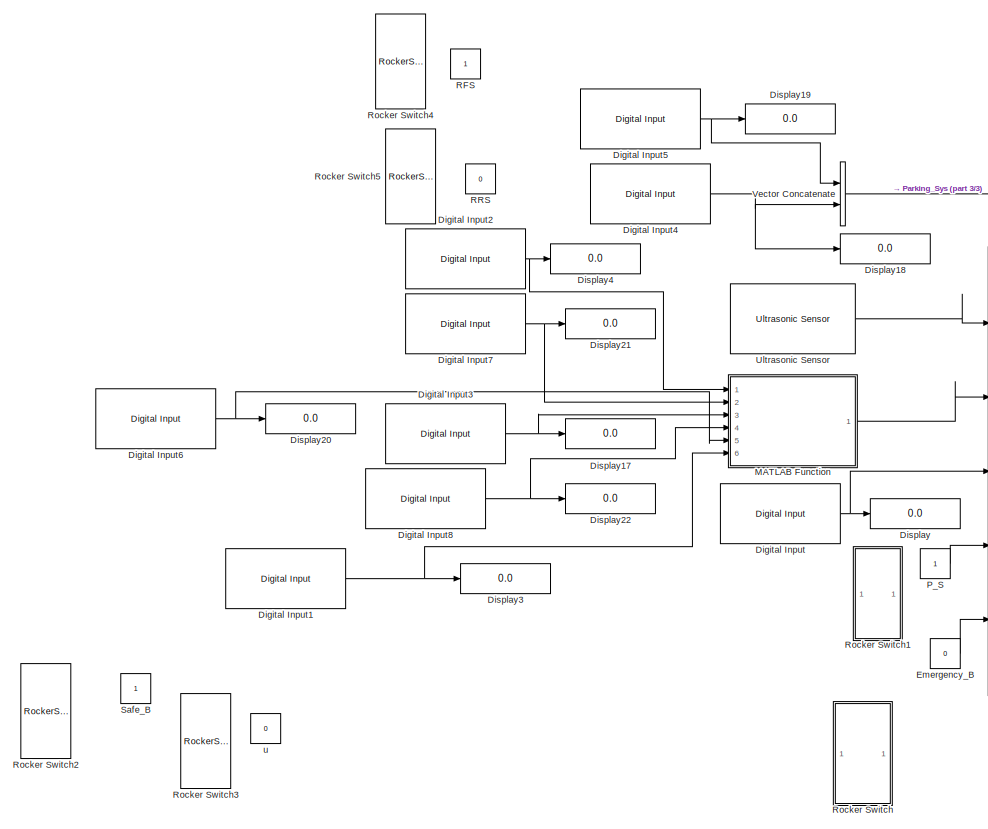
[diagram: root canvas - part 1/3, left side, full height]
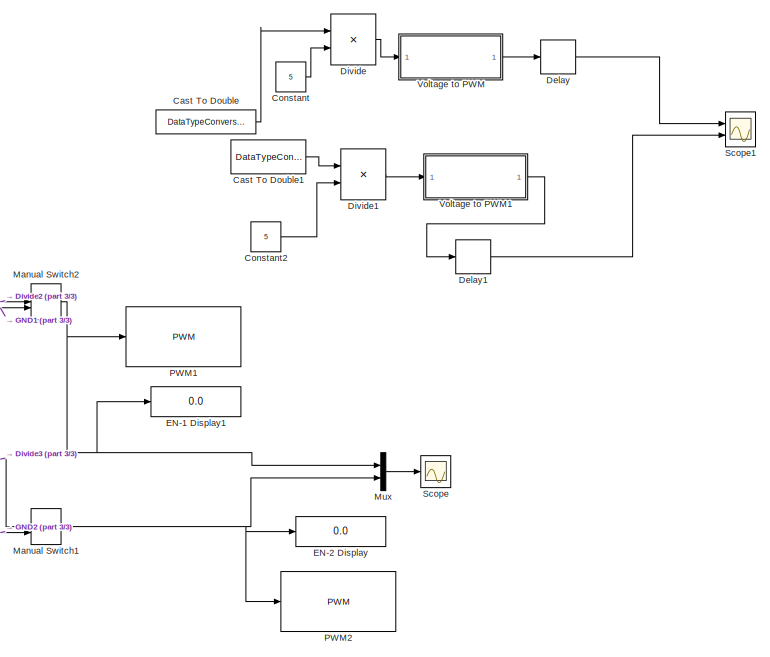
[diagram: root canvas - part 2/3, right side, full height]
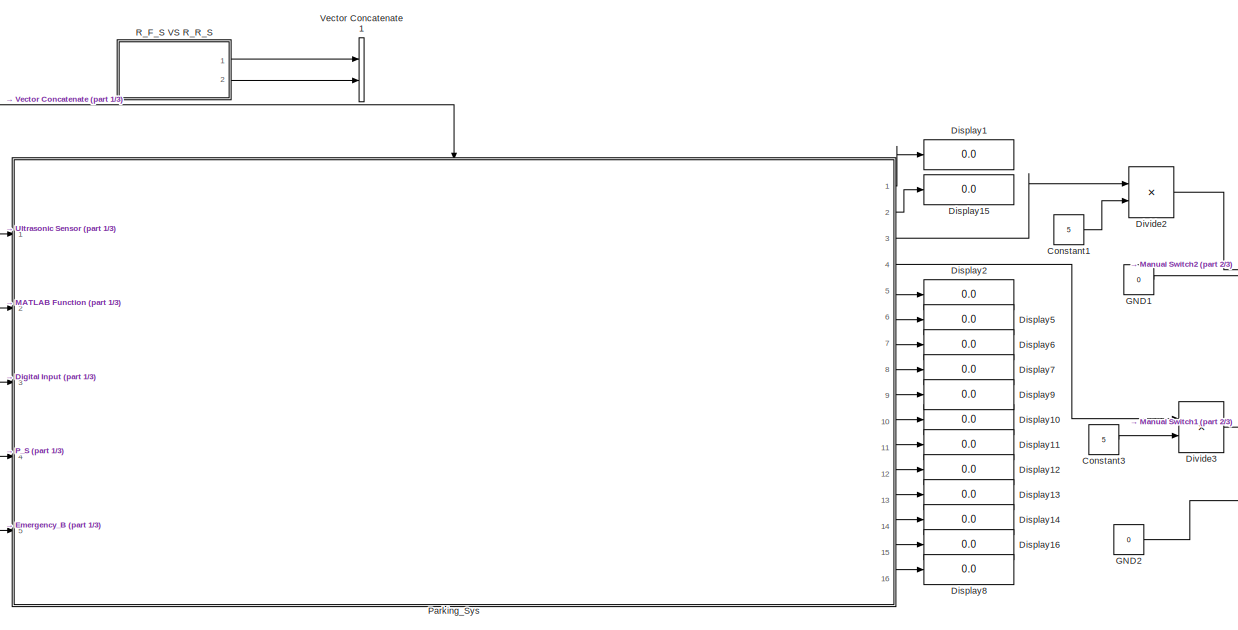
[diagram: root canvas - part 3/3, center side, full height]
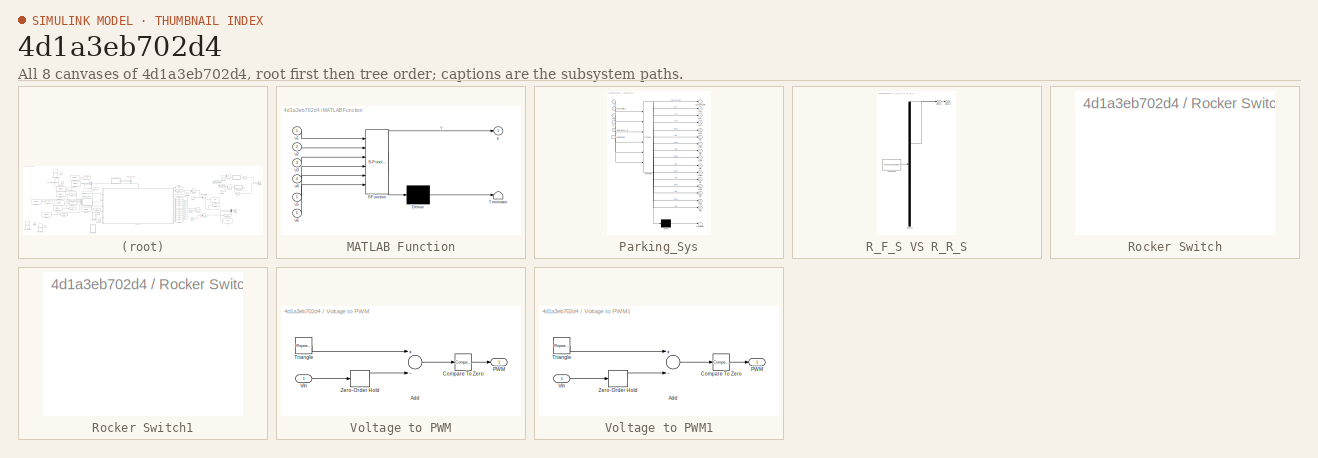
[diagram: thumbnail index - all 8 canvases of the model, root first then tree order]
MODEL slx_4d1a3eb702d4
KIND model
CONFIG AbsTol = auto
CONFIG FixedStep = 0.01
CONFIG MaxStep = auto
CONFIG MinStep = auto
CONFIG RelTol = 1e-3
CONFIG SampleTimeConstraint = Unconstrained
CONFIG Solver = FixedStepAuto
CONFIG SolverMode = Auto
CONFIG SolverName = FixedStepAuto
CONFIG StartTime = 0.0
CONFIG StopTime = inf
BLOCK [Reference]  PWM1  REF=arduinolib/PWM
  Ports = [1]
  SourceBlock = arduinolib/PWM
  SourceType = Arduino PWM
BLOCK [Reference]  PWM2  REF=arduinolib/PWM
  Ports = [1]
  SourceBlock = arduinolib/PWM
  SourceType = Arduino PWM
BLOCK [DataTypeConversion] Cast To Double
  Commented = on
  OutDataTypeStr = double
  RndMeth = Floor
  SaturateOnIntegerOverflow = off
BLOCK [DataTypeConversion] Cast To Double1
  Commented = on
  OutDataTypeStr = double
  RndMeth = Floor
  SaturateOnIntegerOverflow = off
BLOCK [Constant] Constant
  Commented = on
  Value = 5
BLOCK [Constant] Constant1
  Value = 5
BLOCK [Constant] Constant2
  Commented = on
  Value = 5
BLOCK [Constant] Constant3
  Value = 5
BLOCK [Delay] Delay
  Commented = on
  DelayLength = 10
  InputPortMap = u0
  Ports = [1, 1]
BLOCK [Delay] Delay1
  Commented = on
  DelayLength = 10
  InputPortMap = u0
  Ports = [1, 1]
BLOCK [Reference] Digital Input  REF=arduinolib/Digital Input
  Ports = [0, 1]
  SourceBlock = arduinolib/Digital Input
  SourceType = Arduino Digital Input
BLOCK [Reference] Digital Input1  REF=arduinolib/Digital Input
  Ports = [0, 1]
  SourceBlock = arduinolib/Digital Input
  SourceType = Arduino Digital Input
BLOCK [Reference] Digital Input2  REF=arduinolib/Digital Input
  Ports = [0, 1]
  SourceBlock = arduinolib/Digital Input
  SourceType = Arduino Digital Input
BLOCK [Reference] Digital Input3  REF=arduinolib/Digital Input
  Ports = [0, 1]
  SourceBlock = arduinolib/Digital Input
  SourceType = Arduino Digital Input
BLOCK [Reference] Digital Input4  REF=arduinolib/Digital Input
  Ports = [0, 1]
  SourceBlock = arduinolib/Digital Input
  SourceType = Arduino Digital Input
BLOCK [Reference] Digital Input5  REF=arduinolib/Digital Input
  Ports = [0, 1]
  SourceBlock = arduinolib/Digital Input
  SourceType = Arduino Digital Input
BLOCK [Reference] Digital Input6  REF=arduinolib/Digital Input
  Ports = [0, 1]
  SourceBlock = arduinolib/Digital Input
  SourceType = Arduino Digital Input
BLOCK [Reference] Digital Input7  REF=arduinolib/Digital Input
  Ports = [0, 1]
  SourceBlock = arduinolib/Digital Input
  SourceType = Arduino Digital Input
BLOCK [Reference] Digital Input8  REF=arduinolib/Digital Input
  Ports = [0, 1]
  SourceBlock = arduinolib/Digital Input
  SourceType = Arduino Digital Input
BLOCK [Display] Display
  Decimation = 1
  Ports = [1]
BLOCK [Display] Display1
  Decimation = 1
  Ports = [1]
BLOCK [Display] Display10
  Decimation = 1
  Ports = [1]
BLOCK [Display] Display11
  Decimation = 1
  Ports = [1]
BLOCK [Display] Display12
  Decimation = 1
  Ports = [1]
BLOCK [Display] Display13
  Decimation = 1
  Ports = [1]
BLOCK [Display] Display14
  Decimation = 1
  Ports = [1]
BLOCK [Display] Display15
  Decimation = 1
  Ports = [1]
BLOCK [Display] Display16
  Decimation = 1
  Ports = [1]
BLOCK [Display] Display17
  Decimation = 1
  Ports = [1]
BLOCK [Display] Display18
  Decimation = 1
  Ports = [1]
BLOCK [Display] Display19
  Decimation = 1
  Ports = [1]
BLOCK [Display] Display2
  Decimation = 1
  Ports = [1]
BLOCK [Display] Display20
  Decimation = 1
  Ports = [1]
BLOCK [Display] Display21
  Decimation = 1
  Ports = [1]
BLOCK [Display] Display22
  Decimation = 1
  Ports = [1]
BLOCK [Display] Display3
  Decimation = 1
  Ports = [1]
BLOCK [Display] Display4
  Decimation = 1
  Ports = [1]
BLOCK [Display] Display5
  Decimation = 1
  Ports = [1]
BLOCK [Display] Display6
  Decimation = 1
  Ports = [1]
BLOCK [Display] Display7
  Decimation = 1
  Ports = [1]
BLOCK [Display] Display8
  Decimation = 1
  Ports = [1]
BLOCK [Display] Display9
  Decimation = 1
  Ports = [1]
BLOCK [Product] Divide
  Commented = on
  InputSameDT = off
  Inputs = */
  OutDataTypeStr = Inherit: Inherit via internal rule
  Ports = [2, 1]
  RndMeth = Floor
  SaturateOnIntegerOverflow = off
BLOCK [Product] Divide1
  Commented = on
  InputSameDT = off
  Inputs = */
  OutDataTypeStr = Inherit: Inherit via internal rule
  Ports = [2, 1]
  RndMeth = Floor
  SaturateOnIntegerOverflow = off
BLOCK [Product] Divide2
  InputSameDT = off
  Inputs = */
  OutDataTypeStr = Inherit: Inherit via internal rule
  Ports = [2, 1]
  RndMeth = Floor
  SaturateOnIntegerOverflow = off
BLOCK [Product] Divide3
  InputSameDT = off
  Inputs = */
  OutDataTypeStr = Inherit: Inherit via internal rule
  Ports = [2, 1]
  RndMeth = Floor
  SaturateOnIntegerOverflow = off
BLOCK [Display] EN-1 Display1
  Decimation = 1
  Ports = [1]
BLOCK [Display] EN-2 Display
  Decimation = 1
  Ports = [1]
BLOCK [Constant] Emergency_B
  Value = 0
BLOCK [Constant] GND1
  Value = 0
BLOCK [Constant] GND2
  Value = 0
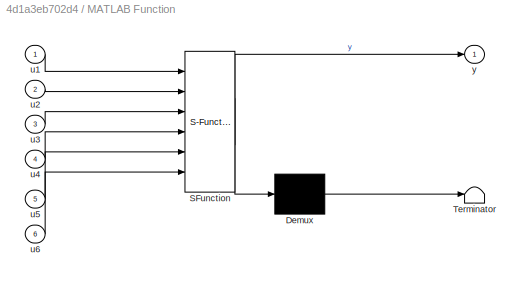
BLOCK [SubSystem] MATLAB Function
  ErrorFcn = Stateflow.Translate.translate
  PermitHierarchicalResolution = ExplicitOnly
  Ports = [6, 1]
  RequestExecContextInheritance = off
  SFBlockType = MATLAB Function
  TreatAsAtomicUnit = on
BLOCK [Demux] MATLAB Function/ Demux 
  Outputs = 1
  Ports = [1, 1]
BLOCK [S-Function] MATLAB Function/ SFunction 
  EnableBusSupport = on
  FunctionName = sf_sfun
  PortCounts = [6 2]
  Ports = [6, 2]
  SFunctionDeploymentMode = off
  Tag = Stateflow S-Function state_chart_final 2
BLOCK [Terminator] MATLAB Function/ Terminator 
BLOCK [Inport] MATLAB Function/u1
  IconDisplay = Port number
BLOCK [Inport] MATLAB Function/u2
  IconDisplay = Port number
  Port = 2
BLOCK [Inport] MATLAB Function/u3
  IconDisplay = Port number
  Port = 3
BLOCK [Inport] MATLAB Function/u4
  IconDisplay = Port number
  Port = 4
BLOCK [Inport] MATLAB Function/u5
  IconDisplay = Port number
  Port = 5
BLOCK [Inport] MATLAB Function/u6
  IconDisplay = Port number
  Port = 6
BLOCK [Outport] MATLAB Function/y
  IconDisplay = Port number
BLOCK [ManualSwitch] Manual Switch1
  CurrentSetting = 0
BLOCK [ManualSwitch] Manual Switch2
  CurrentSetting = 0
BLOCK [Mux] Mux
  DisplayOption = bar
  Inputs = 2
  Ports = [2, 1]
BLOCK [Constant] P_S
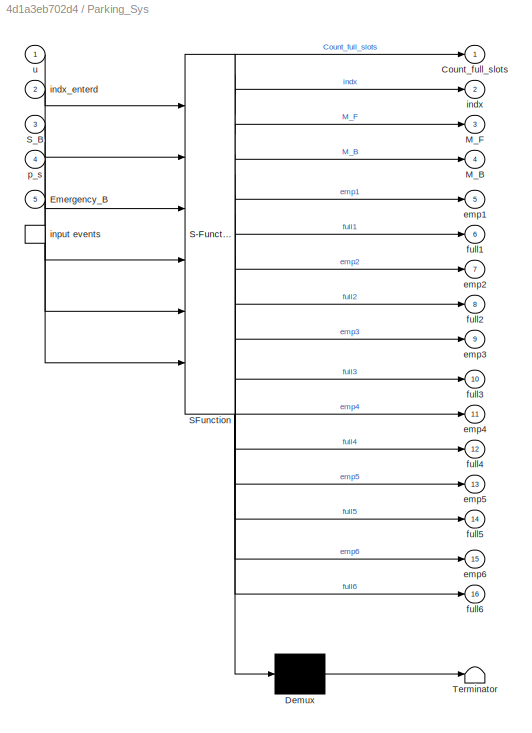
BLOCK [SubSystem] Parking_Sys
  ErrorFcn = Stateflow.Translate.translate
  PermitHierarchicalResolution = ExplicitOnly
  Ports = [5, 16, 0, 1]
  RequestExecContextInheritance = off
  SFBlockType = Chart
  TreatAsAtomicUnit = on
BLOCK [Demux] Parking_Sys/ Demux 
  Outputs = 1
  Ports = [1, 1]
BLOCK [S-Function] Parking_Sys/ SFunction 
  EnableBusSupport = on
  FunctionName = sf_sfun
  PortCounts = [6 17]
  Ports = [6, 17]
  SFunctionDeploymentMode = off
  Tag = Stateflow S-Function state_chart_final 3
BLOCK [Terminator] Parking_Sys/ Terminator 
BLOCK [Outport] Parking_Sys/Count_full_slots
  IconDisplay = Port number
BLOCK [Inport] Parking_Sys/Emergency_B
  IconDisplay = Port number
  Port = 5
BLOCK [Outport] Parking_Sys/M_B
  IconDisplay = Port number
  Port = 4
BLOCK [Outport] Parking_Sys/M_F
  IconDisplay = Port number
  Port = 3
BLOCK [Inport] Parking_Sys/S_B
  IconDisplay = Port number
  Port = 3
BLOCK [Outport] Parking_Sys/emp1
  IconDisplay = Port number
  Port = 5
BLOCK [Outport] Parking_Sys/emp2
  IconDisplay = Port number
  Port = 7
BLOCK [Outport] Parking_Sys/emp3
  IconDisplay = Port number
  Port = 9
BLOCK [Outport] Parking_Sys/emp4
  IconDisplay = Port number
  Port = 11
BLOCK [Outport] Parking_Sys/emp5
  IconDisplay = Port number
  Port = 13
BLOCK [Outport] Parking_Sys/emp6
  IconDisplay = Port number
  Port = 15
BLOCK [Outport] Parking_Sys/full1
  IconDisplay = Port number
  Port = 6
BLOCK [Outport] Parking_Sys/full2
  IconDisplay = Port number
  Port = 8
BLOCK [Outport] Parking_Sys/full3
  IconDisplay = Port number
  Port = 10
BLOCK [Outport] Parking_Sys/full4
  IconDisplay = Port number
  Port = 12
BLOCK [Outport] Parking_Sys/full5
  IconDisplay = Port number
  Port = 14
BLOCK [Outport] Parking_Sys/full6
  IconDisplay = Port number
  Port = 16
BLOCK [Outport] Parking_Sys/indx
  IconDisplay = Port number
  Port = 2
BLOCK [Inport] Parking_Sys/indx_enterd
  IconDisplay = Port number
  Port = 2
BLOCK [TriggerPort] Parking_Sys/input events
  Ports = [0, 1]
  ShowOutputPort = on
  StatesWhenEnabling = held
  VariantControl = (inherit)
BLOCK [Inport] Parking_Sys/p_s
  IconDisplay = Port number
  Port = 4
BLOCK [Inport] Parking_Sys/u
  IconDisplay = Port number
BLOCK [Constant] RFS
  Commented = on
BLOCK [Constant] RRS
  Commented = on
  Value = 0
BLOCK [SubSystem] R_F_S VS R_R_S
  ClipboardFcn = sigbuilder_block('clipboard');
  CloseFcn = sigbuilder_block('close');
  Commented = on
  ContinueFcn = sigbuilder_block('continue');
  CopyFcn = sigbuilder_block('copy');
  DeleteFcn = sigbuilder_block('delete');
  LoadFcn = sigbuilder_block('load');
  MaskHideContents = on
  ModelCloseFcn = sigbuilder_block('modelClose');
  NameChangeFcn = sigbuilder_block('namechange');
  OpenFcn = sigbuilder_block('open',[6 30 1012.5 447.75 ]);
  PauseFcn = sigbuilder_block('pause');
  Ports = [0, 2]
  PreSaveFcn = sigbuilder_block('preSave');
  RequestExecContextInheritance = off
  StartFcn = sigbuilder_block('start');
  StopFcn = sigbuilder_block('stop');
  Tag = STV Subsys
BLOCK [Demux] R_F_S VS R_R_S/Demux
  Outputs = 2
  Ports = [1, 2]
  Tag = STV Demux
BLOCK [FromWorkspace] R_F_S VS R_R_S/FromWs
  SampleTime = 0
  Tag = STV FromWs
  VariableName = tuvar
  ZeroCross = on
BLOCK [Outport] R_F_S VS R_R_S/Signal 1
  IconDisplay = Port number
  Tag = STV Outport
BLOCK [Outport] R_F_S VS R_R_S/Signal 2
  IconDisplay = Port number
  Port = 2
  Tag = STV Outport
BLOCK [SubSystem] Rocker Switch
  DialogController = hmiCreateDDGDialog
  IsWebBlock = on
  Ports = []
  RequestExecContextInheritance = off
BLOCK [SubSystem] Rocker Switch1
  DialogController = hmiCreateDDGDialog
  IsWebBlock = on
  Ports = []
  RequestExecContextInheritance = off
BLOCK [RockerSwitchBlock] Rocker Switch2
  Commented = on
BLOCK [RockerSwitchBlock] Rocker Switch3
  Commented = on
BLOCK [RockerSwitchBlock] Rocker Switch4
  Commented = on
BLOCK [RockerSwitchBlock] Rocker Switch5
  Commented = on
BLOCK [Constant] Safe_B
  Commented = on
BLOCK [Scope] Scope
  Floating = off
  NumInputPorts = 1
  Ports = [1]
  ScopeSpecificationString = Simulink.scopes.TimeScopeBlockCfg('CurrentConfiguration', extmgr.ConfigurationSet(extmgr.Configuration('Core','General UI',true),extmgr.Configuration('Core','Source UI',true),extmgr.Configuration('Sources','WiredSimulink',true,'DataLoggingVariableName','ScopeData2'),extmgr.Configuration('Visuals','Time Domain',true,'SerializedDisplays',{struct('MinYLimReal','-0.025','MaxYLimReal','0.225','YLabelRe...<+1570ch>
BLOCK [Scope] Scope1
  Commented = on
  Floating = off
  NumInputPorts = 2
  Ports = [2]
  ScopeSpecificationString = Simulink.scopes.TimeScopeBlockCfg('CurrentConfiguration', extmgr.ConfigurationSet(extmgr.Configuration('Core','General UI',true),extmgr.Configuration('Core','Source UI',true),extmgr.Configuration('Sources','WiredSimulink',true,'DataLoggingVariableName','ScopeData1'),extmgr.Configuration('Visuals','Time Domain',true,'SerializedDisplays',{struct('MinYLimReal','-0.125','MaxYLimReal','1.125','YLabelRe...<+2061ch>
BLOCK [Reference] Ultrasonic Sensor  REF=arduinosensorlib/Ultrasonic Sensor
  Ports = [0, 1]
  SourceBlock = arduinosensorlib/Ultrasonic Sensor
  SourceType = Arduino Ultrasonic Sensor
BLOCK [Concatenate] Vector Concatenate
  Ports = [2, 1]
BLOCK [Concatenate] Vector Concatenate1
  Commented = on
  Ports = [2, 1]
BLOCK [SubSystem] Voltage to PWM
  Commented = on
  Ports = [1, 1]
  RequestExecContextInheritance = off
BLOCK [Sum] Voltage to PWM/Add
  InputSameDT = off
  Inputs = +-
  OutDataTypeStr = Inherit: Inherit via internal rule
  Ports = [2, 1]
  SampleTime = 1/10000
  SaturateOnIntegerOverflow = off
BLOCK [Reference] Voltage to PWM/Compare To Zero  REF=simulink/Logic and Bit
Operations/Compare
To Zero
  Ports = [1, 1]
  SourceBlock = simulink/Logic and Bit\nOperations/Compare\nTo Zero
  SourceType = Compare To Zero
BLOCK [Outport] Voltage to PWM/PWM
  IconDisplay = Port number
BLOCK [Reference] Voltage to PWM/Triangle  REF=simulink/Sources/Repeating
Sequence
  Ports = [0, 1]
  SourceBlock = simulink/Sources/Repeating\nSequence
  SourceType = Repeating table
BLOCK [Inport] Voltage to PWM/VIn
  IconDisplay = Port number
BLOCK [ZeroOrderHold] Voltage to PWM/Zero-Order Hold
  SampleTime = 1/10000
BLOCK [SubSystem] Voltage to PWM1
  Commented = on
  Ports = [1, 1]
  RequestExecContextInheritance = off
BLOCK [Sum] Voltage to PWM1/Add
  InputSameDT = off
  Inputs = +-
  OutDataTypeStr = Inherit: Inherit via internal rule
  Ports = [2, 1]
  SampleTime = 1/10000
  SaturateOnIntegerOverflow = off
BLOCK [Reference] Voltage to PWM1/Compare To Zero  REF=simulink/Logic and Bit
Operations/Compare
To Zero
  Ports = [1, 1]
  SourceBlock = simulink/Logic and Bit\nOperations/Compare\nTo Zero
  SourceType = Compare To Zero
BLOCK [Outport] Voltage to PWM1/PWM
  IconDisplay = Port number
BLOCK [Reference] Voltage to PWM1/Triangle  REF=simulink/Sources/Repeating
Sequence
  Ports = [0, 1]
  SourceBlock = simulink/Sources/Repeating\nSequence
  SourceType = Repeating table
BLOCK [Inport] Voltage to PWM1/VIn
  IconDisplay = Port number
BLOCK [ZeroOrderHold] Voltage to PWM1/Zero-Order Hold
  SampleTime = 1/10000
BLOCK [Constant] u
  Commented = on
  Value = 0
LINE Cast To Double1:1 -> Divide1:1
LINE Cast To Double:1 -> Divide:1
LINE Constant1:1 -> Divide2:2
LINE Constant2:1 -> Divide1:2
LINE Constant3:1 -> Divide3:2
LINE Constant:1 -> Divide:2
LINE Delay1:1 -> Scope1:2
LINE Delay:1 -> Scope1:1
NET Digital Input1:1 -> Display3:1, MATLAB Function:6
NET Digital Input2:1 -> Display4:1, MATLAB Function:1
NET Digital Input3:1 -> Display17:1, MATLAB Function:3
NET Digital Input4:1 -> Display18:1, Vector Concatenate:2
NET Digital Input5:1 -> Display19:1, Vector Concatenate:1
NET Digital Input6:1 -> Display20:1, MATLAB Function:5
NET Digital Input7:1 -> Display21:1, MATLAB Function:2
NET Digital Input8:1 -> Display22:1, MATLAB Function:4
NET Digital Input:1 -> Display:1, Parking_Sys:3
LINE Divide1:1 -> Voltage to PWM1:1
LINE Divide2:1 -> Manual Switch2:1
LINE Divide3:1 -> Manual Switch1:1
LINE Divide:1 -> Voltage to PWM:1
LINE Emergency_B:1 -> Parking_Sys:5
LINE GND1:1 -> Manual Switch2:2
LINE GND2:1 -> Manual Switch1:2
LINE MATLAB Function:1 -> Parking_Sys:2
NET Manual Switch1:1 ->  PWM2:1, EN-2 Display:1, Mux:2
NET Manual Switch2:1 ->  PWM1:1, EN-1 Display1:1, Mux:1
LINE Mux:1 -> Scope:1
LINE P_S:1 -> Parking_Sys:4
LINE Parking_Sys:1 -> Display1:1
LINE Parking_Sys:10 -> Display10:1
LINE Parking_Sys:11 -> Display11:1
LINE Parking_Sys:12 -> Display12:1
LINE Parking_Sys:13 -> Display13:1
LINE Parking_Sys:14 -> Display14:1
LINE Parking_Sys:15 -> Display16:1
LINE Parking_Sys:16 -> Display8:1
LINE Parking_Sys:2 -> Display15:1
LINE Parking_Sys:3 -> Divide2:1
LINE Parking_Sys:4 -> Divide3:1
LINE Parking_Sys:5 -> Display2:1
LINE Parking_Sys:6 -> Display5:1
LINE Parking_Sys:7 -> Display6:1
LINE Parking_Sys:8 -> Display7:1
LINE Parking_Sys:9 -> Display9:1
LINE R_F_S VS R_R_S:1 -> Vector Concatenate1:1
LINE R_F_S VS R_R_S:2 -> Vector Concatenate1:2
LINE Ultrasonic Sensor:1 -> Parking_Sys:1
LINE Vector Concatenate:1 -> Parking_Sys:trigger
LINE Voltage to PWM/Add:1 -> Voltage to PWM/Compare To Zero:1
LINE Voltage to PWM/Compare To Zero:1 -> Voltage to PWM/PWM:1
LINE Voltage to PWM/Triangle:1 -> Voltage to PWM/Add:1
LINE Voltage to PWM/VIn:1 -> Voltage to PWM/Zero-Order Hold:1
LINE Voltage to PWM/Zero-Order Hold:1 -> Voltage to PWM/Add:2
LINE Voltage to PWM1/Add:1 -> Voltage to PWM1/Compare To Zero:1
LINE Voltage to PWM1/Compare To Zero:1 -> Voltage to PWM1/PWM:1
LINE Voltage to PWM1/Triangle:1 -> Voltage to PWM1/Add:1
LINE Voltage to PWM1/VIn:1 -> Voltage to PWM1/Zero-Order Hold:1
LINE Voltage to PWM1/Zero-Order Hold:1 -> Voltage to PWM1/Add:2
LINE Voltage to PWM1:1 -> Delay1:1
LINE Voltage to PWM:1 -> Delay:1
note: NET lines group one-source signal fan-out (src -> all destinations, sorted); 1:1 wires keep LINE
CHART MATLAB Function states=1 transitions=1
  STATE_LABEL 'eML_blk_kernel()'
  STATE_LABEL 'SCRIPT:\nfunction y = fcn(u1,u2,u3,u4,u5,u6)\nif (u1==1)\ny=1;\nend\nif(u2==1)\ny=2;\nend\nif(u3==1)\ny=3;\nend\nif(u4==1)\ny=4;\nend\nif(u5==1)\ny=5;\nend\nif(u6==1)\ny=6;\nend\n'
CHART Parking_Sys states=31 transitions=73
  STATE_LABEL 'System\n'
  STATE_LABEL 'Power_on'
  STATE_LABEL 'Slots\nentry: emp1 = 1;\nentry:emp2 = 1;\nentry:emp3 = 1;\nentry:emp4 = 1;\nentry:emp5 = 1;\nentry:emp6 = 1;\nentry: full1 = 0;\nentry: full2=0;\nentry: full3=0;\nentry: full4=0;\nentry: full5=0;\nentry: full6=0;\n'
  STATE_LABEL 'Slot1\nentry: indx =1;\n'
  STATE_LABEL 'check'
  STATE_LABEL 'Full\nentry: full1 = 1;\nentry: M_F=0;\nentry: M_B=0;'
  STATE_LABEL 'Empty\nentry: emp1 = 1;\nentry: M_F=0;\nentry: M_B=0;'
  STATE_LABEL '[full1==1&&emp1==0]'
  STATE_LABEL '[emp1==1&& full1==0]'
  STATE_LABEL 'R_F_S[u == 0]{emp1=0;}'
  STATE_LABEL 'R_R_S[indx_enterd == indx && u==1]{full1=0;}'
  STATE_LABEL 'Slot6\nentry: indx =6;\n'
  STATE_LABEL 'check'
  STATE_LABEL 'Full\nentry: full6 = 1;\nentry: M_F=0;\nentry: M_B=0;'
  STATE_LABEL 'Empty\nentry: emp6 = 1;\nentry: M_F=0;\nentry: M_B=0;'
  STATE_LABEL '[emp6==1&& full6==0]'
  STATE_LABEL '[full6==1&&emp6==0]'
  STATE_LABEL 'R_F_S[u == 0]{emp6=0;}'
  STATE_LABEL 'R_R_S[indx_enterd == indx && u==1]{full6=0;}'
  STATE_LABEL 'Slot2\nentry: indx =2;\n %entry: M_F=0;\n %entry: M_B=0;\n'
  STATE_LABEL 'check'
  STATE_LABEL 'Empty\nentry: emp2 = 1;\nentry: M_F=0;\nentry: M_B=0;'
  STATE_LABEL 'Full\nentry: full2 = 1;\nentry: M_F=0;\nentry: M_B=0;'
  STATE_LABEL '[full2==1&&emp2==0]'
  STATE_LABEL '[emp2==1&& full2==0]'
  STATE_LABEL 'R_F_S[u==0]{emp2=0;}'
  STATE_LABEL 'R_R_S[indx_enterd==indx && u==1]{full2=0;}'
  STATE_LABEL 'Slot5\nentry: indx=5;\n'
  STATE_LABEL 'check'
  STATE_LABEL 'Empty\nentry: emp5 = 1;\nentry: M_F=0;\nentry: M_B=0;'
  STATE_LABEL 'Full\nentry: full5 = 1;\nentry: M_F=0;\nentry: M_B=0;'
  STATE_LABEL '[full5==1&&emp5==0]'
  STATE_LABEL '[emp5==1&& full5==0]'
  STATE_LABEL 'R_F_S[u == 0]{emp5=0;}'
  STATE_LABEL 'R_R_S[indx_enterd == indx && u==1]{full5=0;}'
  STATE_LABEL 'Slot4\nentry: indx =4;\n'
  STATE_LABEL 'check'
  STATE_LABEL 'Empty\nentry: emp4 = 1;\nentry: M_F=0;\nentry: M_B=0;'
  STATE_LABEL 'Full\nentry: full4 = 1;\nentry: M_F=0;\nentry: M_B=0;'
  STATE_LABEL '[emp4==1&& full4==0]'
